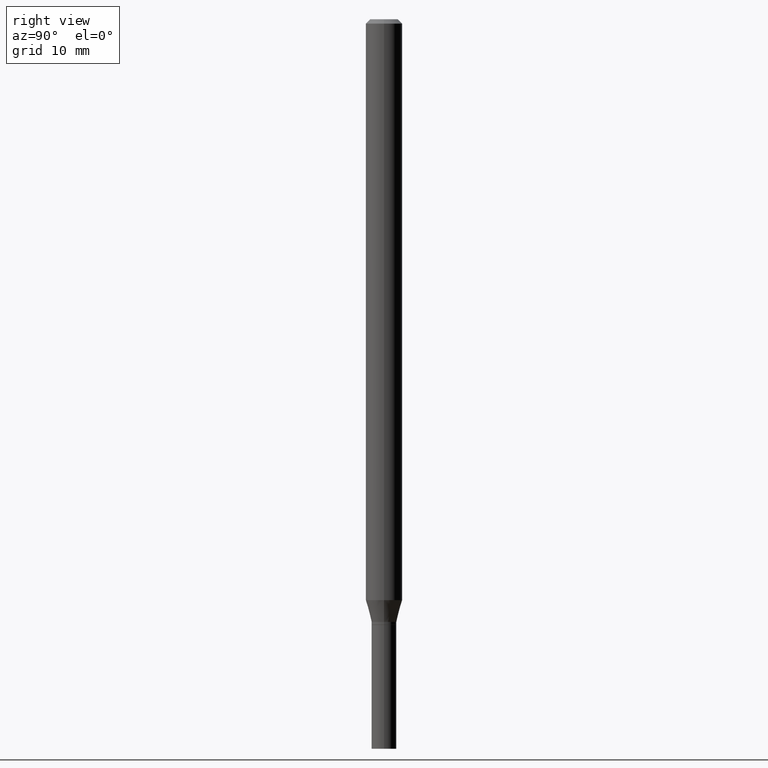
[diagram: clean part render]
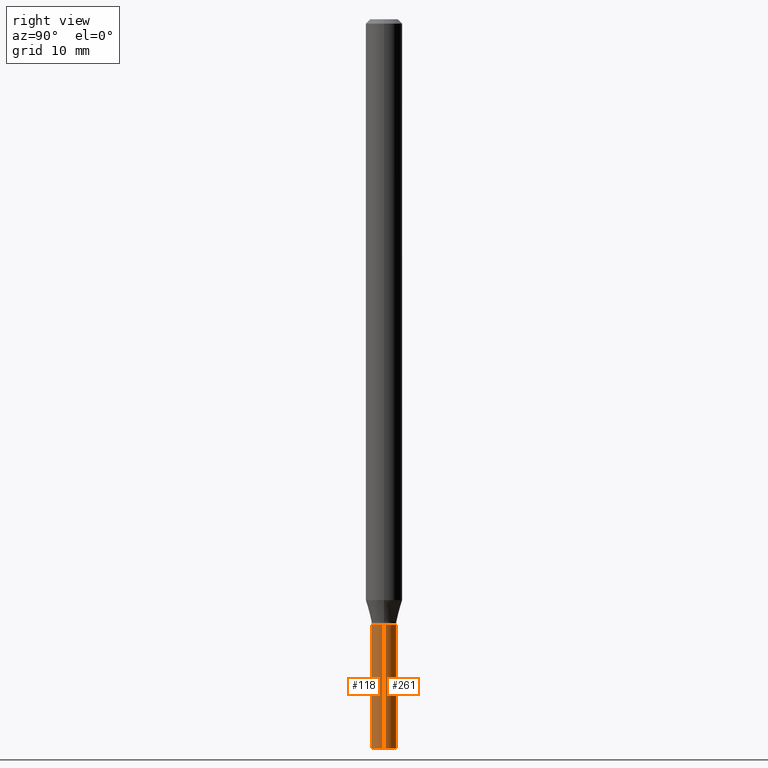
[diagram: same view with one multi-face feature highlighted, each face labeled with its STEP entity id]
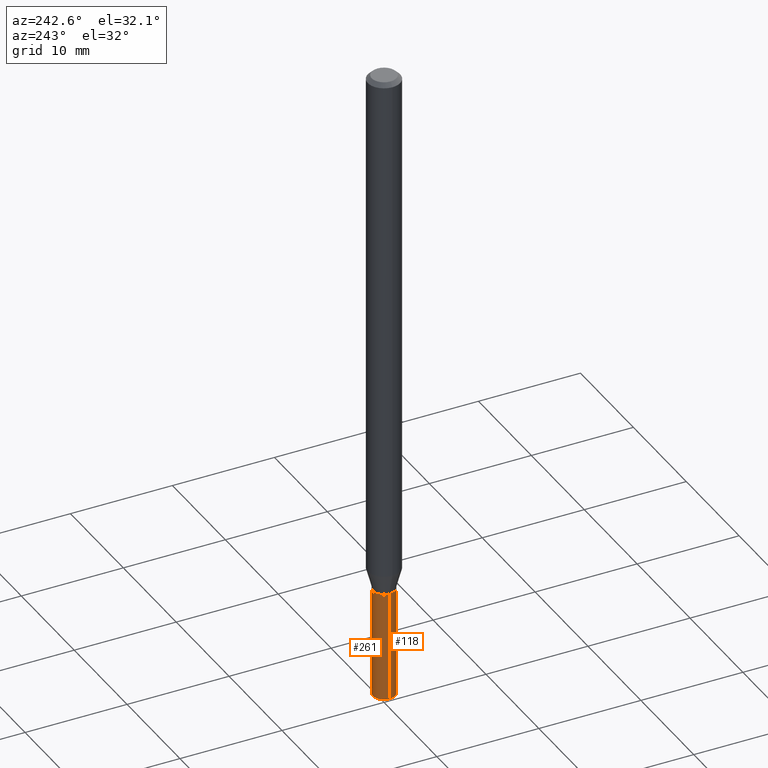
[diagram: same view with one multi-face feature highlighted, each face labeled with its STEP entity id]
A machine part, right view. The highlighted faces form ONE feature: a constant-radius fillet chain: 2 tangent blend faces with common blend radius 1.0795 mm. The faces share edges in the B-rep.
A second angle (auxiliary view) of the same feature is appended — it is thin or edge-on in the first view.
Their STEP definitions:
[1] entity #261 (Cylinder):
#2 = DIRECTION ( 'NONE',  ( -2.445468806185136597E-29, 3.491481338843145583E-15, 1.000000000000000000 ) ) ;
#8 = EDGE_CURVE ( 'NONE', #412, #210, #327, .T. ) ;
#22 = EDGE_CURVE ( 'NONE', #412, #453, #354, .T. ) ;
#39 = DIRECTION ( 'NONE',  ( 1.000000000000000000, -6.982962677686276177E-15, 0.000000000000000000 ) ) ;
#41 = CARTESIAN_POINT ( 'NONE',  ( -0.04249999999999999611, -7.684782899905652708E-15, -2.075000000000000178 ) ) ;
#104 = DIRECTION ( 'NONE',  ( -2.445468806185136877E-29, 3.491481338843145188E-15, 1.000000000000000000 ) ) ;
#110 = CARTESIAN_POINT ( 'NONE',  ( 0.000000000000000000, 0.000000000000000000, 0.000000000000000000 ) ) ;
#115 = DIRECTION ( 'NONE',  ( -2.445468806185136877E-29, 3.491481338843145188E-15, 1.000000000000000000 ) ) ;
#132 = CARTESIAN_POINT ( 'NONE',  ( 0.04249999999999999611, -9.025479260909530016E-15, -2.500000000000000000 ) ) ;
#137 = AXIS2_PLACEMENT_3D ( 'NONE', #110, #247, #395 ) ;
#165 = ORIENTED_EDGE ( 'NONE', *, *, #202, .F. ) ;
#183 = LINE ( 'NONE', #323, #224 ) ;
#202 = EDGE_CURVE ( 'NONE', #453, #204, #311, .T. ) ;
#204 = VERTEX_POINT ( 'NONE', #41 ) ;
#210 = VERTEX_POINT ( 'NONE', #394 ) ;
#224 = VECTOR ( 'NONE', #115, 39.37007874015748143 ) ;
#244 = CARTESIAN_POINT ( 'NONE',  ( 5.074347772834158663E-29, -7.244823778099526956E-15, -2.075000000000000178 ) ) ;
#247 = DIRECTION ( 'NONE',  ( -2.445468806185136597E-29, 3.491481338843145583E-15, 1.000000000000000000 ) ) ;
#248 = EDGE_LOOP ( 'NONE', ( #420, #466, #165, #380 ) ) ;
#261 = ADVANCED_FACE ( 'NONE', ( #435 ), #324, .T. ) ;
#277 = CARTESIAN_POINT ( 'NONE',  ( 6.113672015462842613E-29, -8.728703347107864943E-15, -2.500000000000000000 ) ) ;
#278 = DIRECTION ( 'NONE',  ( 1.000000000000000000, -6.982962677686254089E-15, 0.000000000000000000 ) ) ;
#279 = CARTESIAN_POINT ( 'NONE',  ( 0.04249999999999999611, -2.967759138016663549E-16, 2.072375129713272502E-30 ) ) ;
#311 = CIRCLE ( 'NONE', #439, 0.04249999999999999611 ) ;
#323 = CARTESIAN_POINT ( 'NONE',  ( -0.04249999999999999611, 3.019806626980425514E-16, -2.090547413358334859E-30 ) ) ;
#324 = CYLINDRICAL_SURFACE ( 'NONE', #137, 0.04249999999999999611 ) ;
#327 = CIRCLE ( 'NONE', #425, 0.04249999999999999611 ) ;
#339 = EDGE_CURVE ( 'NONE', #210, #204, #183, .T. ) ;
#354 = LINE ( 'NONE', #279, #431 ) ;
#380 = ORIENTED_EDGE ( 'NONE', *, *, #22, .F. ) ;
#394 = CARTESIAN_POINT ( 'NONE',  ( -0.04249999999999999611, -7.684782899905652708E-15, -2.500000000000000000 ) ) ;
#395 = DIRECTION ( 'NONE',  ( 1.000000000000000000, -6.982962677686267499E-15, 4.876176775795935793E-29 ) ) ;
#412 = VERTEX_POINT ( 'NONE', #132 ) ;
#420 = ORIENTED_EDGE ( 'NONE', *, *, #8, .T. ) ;
#425 = AXIS2_PLACEMENT_3D ( 'NONE', #277, #464, #278 ) ;
#431 = VECTOR ( 'NONE', #104, 39.37007874015748143 ) ;
#435 = FACE_OUTER_BOUND ( 'NONE', #248, .T. ) ;
#439 = AXIS2_PLACEMENT_3D ( 'NONE', #244, #2, #39 ) ;
#445 = CARTESIAN_POINT ( 'NONE',  ( 0.04249999999999999611, -7.541599691901193606E-15, -2.075000000000000178 ) ) ;
#453 = VERTEX_POINT ( 'NONE', #445 ) ;
#464 = DIRECTION ( 'NONE',  ( -2.445468806185136597E-29, 3.491481338843145583E-15, 1.000000000000000000 ) ) ;
#466 = ORIENTED_EDGE ( 'NONE', *, *, #339, .T. ) ;
[2] entity #118 (Cylinder):
#6 = DIRECTION ( 'NONE',  ( 1.000000000000000000, -6.982962677686276177E-15, 0.000000000000000000 ) ) ;
#22 = EDGE_CURVE ( 'NONE', #412, #453, #354, .T. ) ;
#26 = CARTESIAN_POINT ( 'NONE',  ( 0.000000000000000000, 0.000000000000000000, 0.000000000000000000 ) ) ;
#41 = CARTESIAN_POINT ( 'NONE',  ( -0.04249999999999999611, -7.684782899905652708E-15, -2.075000000000000178 ) ) ;
#42 = DIRECTION ( 'NONE',  ( -2.445468806185136597E-29, 3.491481338843145583E-15, 1.000000000000000000 ) ) ;
#54 = AXIS2_PLACEMENT_3D ( 'NONE', #401, #42, #6 ) ;
#69 = EDGE_CURVE ( 'NONE', #210, #412, #187, .T. ) ;
#88 = ORIENTED_EDGE ( 'NONE', *, *, #350, .F. ) ;
#104 = DIRECTION ( 'NONE',  ( -2.445468806185136877E-29, 3.491481338843145188E-15, 1.000000000000000000 ) ) ;
#115 = DIRECTION ( 'NONE',  ( -2.445468806185136877E-29, 3.491481338843145188E-15, 1.000000000000000000 ) ) ;
#118 = ADVANCED_FACE ( 'NONE', ( #207 ), #238, .T. ) ;
#123 = EDGE_LOOP ( 'NONE', ( #397, #313, #301, #88 ) ) ;
#132 = CARTESIAN_POINT ( 'NONE',  ( 0.04249999999999999611, -9.025479260909530016E-15, -2.500000000000000000 ) ) ;
#140 = DIRECTION ( 'NONE',  ( 1.000000000000000000, -6.982962677686254089E-15, 0.000000000000000000 ) ) ;
#169 = DIRECTION ( 'NONE',  ( -2.445468806185136597E-29, 3.491481338843145583E-15, 1.000000000000000000 ) ) ;
#174 = CARTESIAN_POINT ( 'NONE',  ( 6.113672015462842613E-29, -8.728703347107864943E-15, -2.500000000000000000 ) ) ;
#183 = LINE ( 'NONE', #323, #224 ) ;
#187 = CIRCLE ( 'NONE', #280, 0.04249999999999999611 ) ;
#204 = VERTEX_POINT ( 'NONE', #41 ) ;
#207 = FACE_OUTER_BOUND ( 'NONE', #123, .T. ) ;
#210 = VERTEX_POINT ( 'NONE', #394 ) ;
#224 = VECTOR ( 'NONE', #115, 39.37007874015748143 ) ;
#238 = CYLINDRICAL_SURFACE ( 'NONE', #462, 0.04249999999999999611 ) ;
#279 = CARTESIAN_POINT ( 'NONE',  ( 0.04249999999999999611, -2.967759138016663549E-16, 2.072375129713272502E-30 ) ) ;
#280 = AXIS2_PLACEMENT_3D ( 'NONE', #174, #315, #140 ) ;
#301 = ORIENTED_EDGE ( 'NONE', *, *, #22, .T. ) ;
#313 = ORIENTED_EDGE ( 'NONE', *, *, #69, .T. ) ;
#315 = DIRECTION ( 'NONE',  ( -2.445468806185136597E-29, 3.491481338843145583E-15, 1.000000000000000000 ) ) ;
#323 = CARTESIAN_POINT ( 'NONE',  ( -0.04249999999999999611, 3.019806626980425514E-16, -2.090547413358334859E-30 ) ) ;
#339 = EDGE_CURVE ( 'NONE', #210, #204, #183, .T. ) ;
#350 = EDGE_CURVE ( 'NONE', #204, #453, #364, .T. ) ;
#354 = LINE ( 'NONE', #279, #431 ) ;
#364 = CIRCLE ( 'NONE', #54, 0.04249999999999999611 ) ;
#387 = DIRECTION ( 'NONE',  ( 1.000000000000000000, -6.982962677686267499E-15, 4.876176775795935793E-29 ) ) ;
#394 = CARTESIAN_POINT ( 'NONE',  ( -0.04249999999999999611, -7.684782899905652708E-15, -2.500000000000000000 ) ) ;
#397 = ORIENTED_EDGE ( 'NONE', *, *, #339, .F. ) ;
#401 = CARTESIAN_POINT ( 'NONE',  ( 5.074347772834158663E-29, -7.244823778099526956E-15, -2.075000000000000178 ) ) ;
#412 = VERTEX_POINT ( 'NONE', #132 ) ;
#431 = VECTOR ( 'NONE', #104, 39.37007874015748143 ) ;
#445 = CARTESIAN_POINT ( 'NONE',  ( 0.04249999999999999611, -7.541599691901193606E-15, -2.075000000000000178 ) ) ;
#453 = VERTEX_POINT ( 'NONE', #445 ) ;
#462 = AXIS2_PLACEMENT_3D ( 'NONE', #26, #169, #387 ) ;